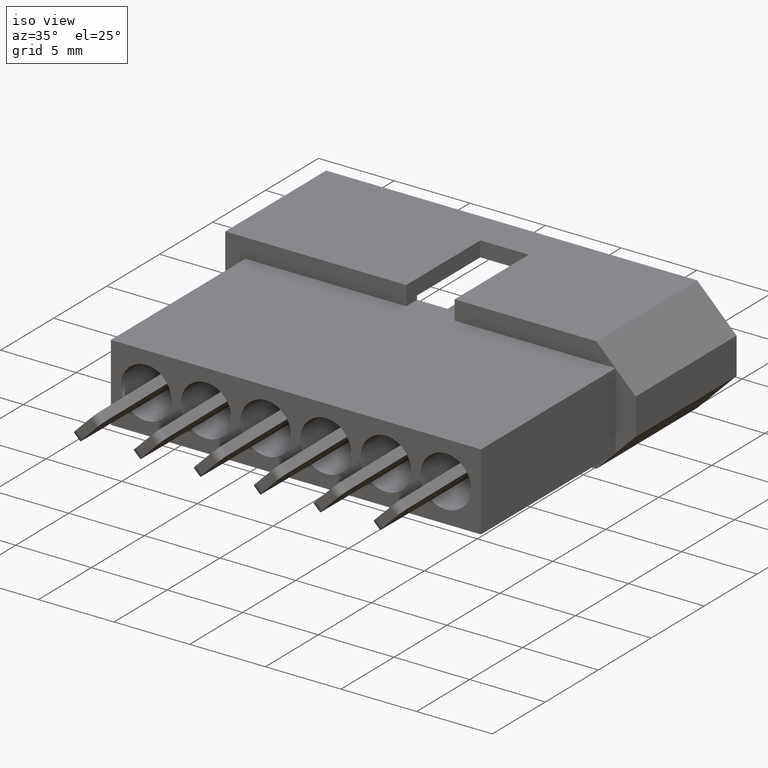
[diagram: clean part render]
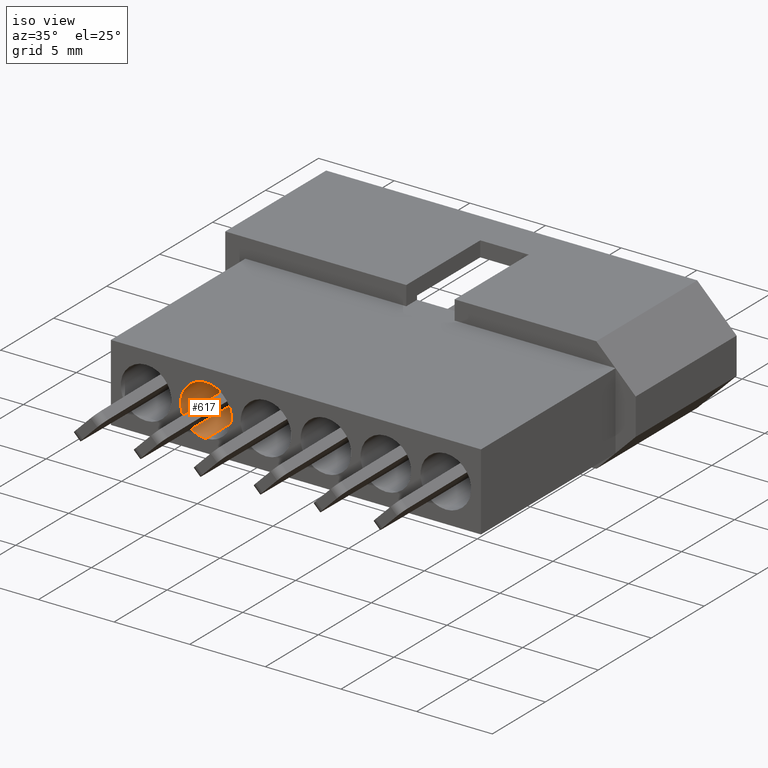
[diagram: same view with one face highlighted and labeled with its STEP entity id]
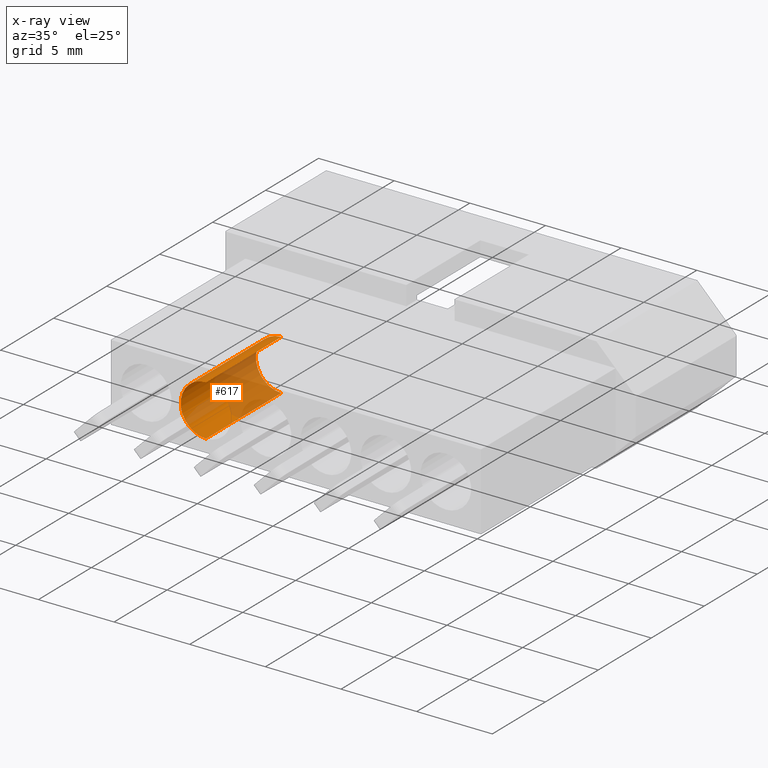
[diagram: x-ray of the same camera — body ghosted, the highlighted face saturated]
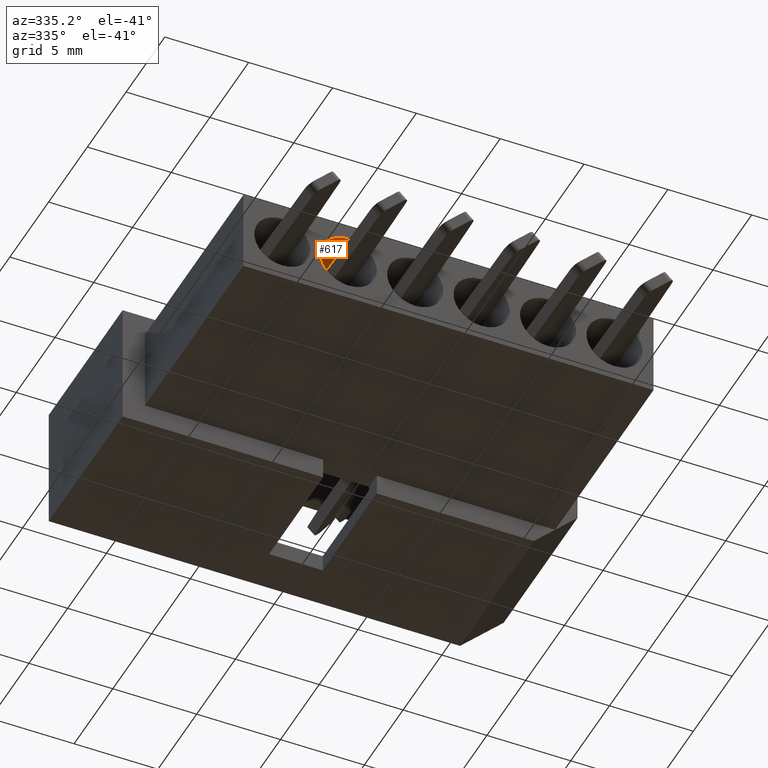
[diagram: same view with one face highlighted and labeled with its STEP entity id]
A machine part, iso view. The second image highlights one B-rep face of the part: STEP entity #617.
The next image is the same camera in x-ray: the body ghosted, the highlighted face saturated — about 54% of this face is hidden behind the body in this view.
A second angle (auxiliary view) of the same face is appended — the face is thin or edge-on in the first view.
In plain terms, the highlighted cylindrical surface (edge-blend (fillet) strip) has radius 1.6764 mm, axis along (0, 1, 0).
Its self-contained STEP definition (entity closure, byte-faithful):
#68 = CARTESIAN_POINT ( 'NONE',  ( 3.962399999999999700, 2.313668333221628800, -1.676399999999999700 ) ) ;
#209 = ORIENTED_EDGE ( 'NONE', *, *, #5149, .F. ) ;
#254 = CARTESIAN_POINT ( 'NONE',  ( 3.962399999999999700, -5.588000000000001000, -9.737026951175853700E-016 ) ) ;
#482 = ORIENTED_EDGE ( 'NONE', *, *, #9123, .F. ) ;
#617 = ADVANCED_FACE ( 'NONE', ( #2750 ), #2317, .F. ) ;
#709 = EDGE_LOOP ( 'NONE', ( #209, #7730, #3480, #482 ) ) ;
#1855 = CARTESIAN_POINT ( 'NONE',  ( 3.962399999999999700, 2.313668333221628800, 1.676399999999999700 ) ) ;
#2120 = VERTEX_POINT ( 'NONE', #5102 ) ;
#2202 = CIRCLE ( 'NONE', #8135, 1.676399999999999700 ) ;
#2223 = DIRECTION ( 'NONE',  ( -0.0000000000000000000, 1.000000000000000000, 1.232274823563231000E-016 ) ) ;
#2317 = CYLINDRICAL_SURFACE ( 'NONE', #2500, 1.676399999999999700 ) ;
#2500 = AXIS2_PLACEMENT_3D ( 'NONE', #7642, #2703, #4198 ) ;
#2574 = DIRECTION ( 'NONE',  ( -0.0000000000000000000, 1.000000000000000000, 1.232274823563231000E-016 ) ) ;
#2703 = DIRECTION ( 'NONE',  ( -0.0000000000000000000, 1.000000000000000000, 1.232274823563231000E-016 ) ) ;
#2750 = FACE_OUTER_BOUND ( 'NONE', #709, .T. ) ;
#2831 = EDGE_CURVE ( 'NONE', #8600, #4131, #4828, .T. ) ;
#3480 = ORIENTED_EDGE ( 'NONE', *, *, #3500, .T. ) ;
#3500 = EDGE_CURVE ( 'NONE', #4131, #8403, #3813, .T. ) ;
#3645 = LINE ( 'NONE', #1855, #5109 ) ;
#3743 = DIRECTION ( 'NONE',  ( -0.0000000000000000000, 1.000000000000000000, 1.232274823563231000E-016 ) ) ;
#3813 = CIRCLE ( 'NONE', #7511, 1.676399999999999900 ) ;
#4131 = VERTEX_POINT ( 'NONE', #5660 ) ;
#4198 = DIRECTION ( 'NONE',  ( 0.0000000000000000000, 0.0000000000000000000, 1.000000000000000000 ) ) ;
#4828 = LINE ( 'NONE', #68, #7044 ) ;
#5102 = CARTESIAN_POINT ( 'NONE',  ( 3.962399999999999700, -12.69999999999999900, 1.676399999999997900 ) ) ;
#5109 = VECTOR ( 'NONE', #2574, 1000.000000000000000 ) ;
#5149 = EDGE_CURVE ( 'NONE', #8600, #2120, #2202, .T. ) ;
#5228 = DIRECTION ( 'NONE',  ( 0.0000000000000000000, 0.0000000000000000000, 1.000000000000000000 ) ) ;
#5660 = CARTESIAN_POINT ( 'NONE',  ( 3.962399999999999700, -5.588000000000001000, -1.676400000000000600 ) ) ;
#6794 = CARTESIAN_POINT ( 'NONE',  ( 3.962399999999999700, -12.69999999999999900, -1.676400000000001700 ) ) ;
#7044 = VECTOR ( 'NONE', #2223, 1000.000000000000000 ) ;
#7511 = AXIS2_PLACEMENT_3D ( 'NONE', #254, #8037, #5228 ) ;
#7642 = CARTESIAN_POINT ( 'NONE',  ( 3.962399999999999700, 2.313668333221628800, 0.0000000000000000000 ) ) ;
#7730 = ORIENTED_EDGE ( 'NONE', *, *, #2831, .T. ) ;
#7928 = CARTESIAN_POINT ( 'NONE',  ( 3.962399999999999700, -12.69999999999999900, -1.850096549635755000E-015 ) ) ;
#8037 = DIRECTION ( 'NONE',  ( -0.0000000000000000000, 1.000000000000000000, 1.232274823563231000E-016 ) ) ;
#8135 = AXIS2_PLACEMENT_3D ( 'NONE', #7928, #3743, #8722 ) ;
#8403 = VERTEX_POINT ( 'NONE', #8789 ) ;
#8600 = VERTEX_POINT ( 'NONE', #6794 ) ;
#8722 = DIRECTION ( 'NONE',  ( 0.0000000000000000000, 0.0000000000000000000, 1.000000000000000000 ) ) ;
#8789 = CARTESIAN_POINT ( 'NONE',  ( 3.962399999999999700, -5.588000000000001000, 1.676399999999999200 ) ) ;
#9123 = EDGE_CURVE ( 'NONE', #2120, #8403, #3645, .T. ) ;